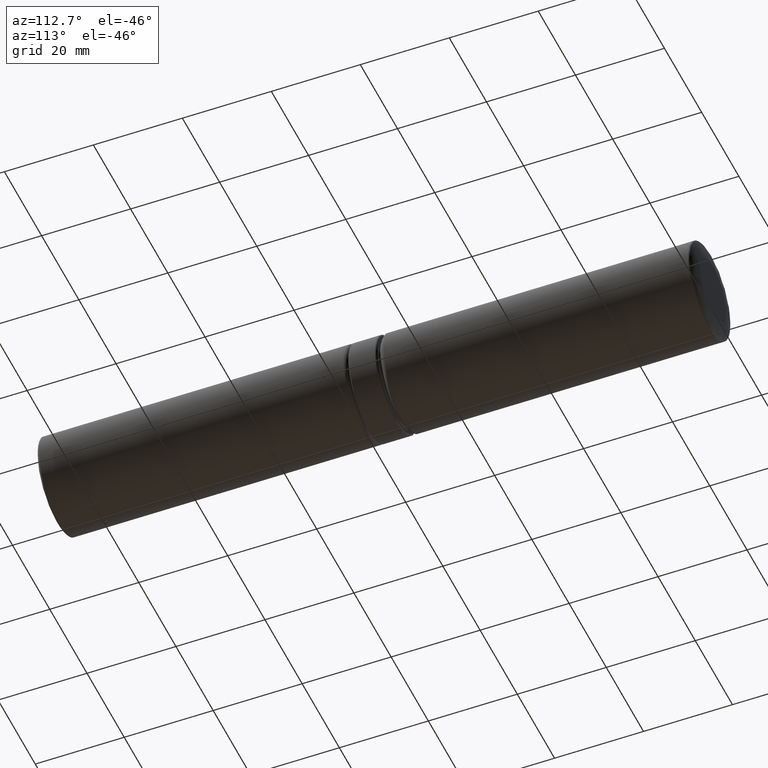
[diagram: clean part render]
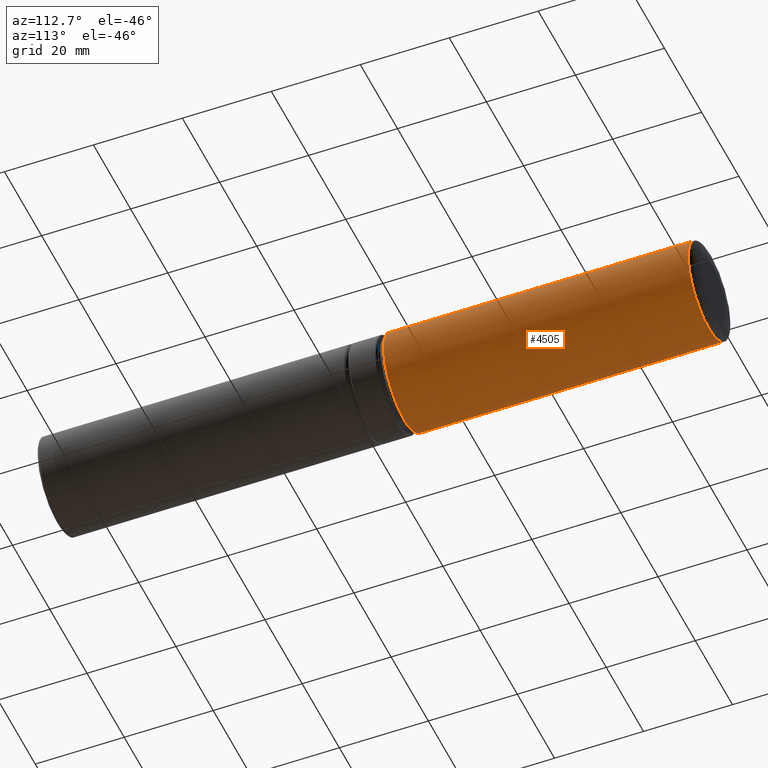
[diagram: same view with one face highlighted and labeled with its STEP entity id]
A machine part, auxiliary view. The second image highlights one B-rep face of the part: STEP entity #4505.
In plain terms, the highlighted cylindrical surface (bore or boss wall) has radius 11 mm, axis along (0, -1, 0).
Its self-contained STEP definition (entity closure, byte-faithful):
#54 = ORIENTED_EDGE ( 'NONE', *, *, #2848, .T. ) ;
#464 = CARTESIAN_POINT ( 'NONE',  ( -7.293008042015047820, 32.06640379061051505, 8.234806233245794971 ) ) ;
#531 = CARTESIAN_POINT ( 'NONE',  ( 2.879226727952087561, 34.24999999999999289, 10.71369944335146052 ) ) ;
#572 = CARTESIAN_POINT ( 'NONE',  ( 11.00000000000000355, 34.25000000000000711, 1.439896632895315998 ) ) ;
#675 = CARTESIAN_POINT ( 'NONE',  ( -8.796335266379980311, 34.25000000000000711, -6.760013919724062958 ) ) ;
#875 = CARTESIAN_POINT ( 'NONE',  ( 7.293008042015048709, -32.06640379061051505, 8.234806233245793194 ) ) ;
#1115 = EDGE_CURVE ( 'NONE', #10632, #10632, #5344, .T. ) ;
#1316 = VERTEX_POINT ( 'NONE', #10319 ) ;
#1421 = CARTESIAN_POINT ( 'NONE',  ( -10.71369944335147295, 34.25000000000001421, -2.879226727952075571 ) ) ;
#1490 = CARTESIAN_POINT ( 'NONE',  ( 8.796335266379974982, 34.25000000000000711, 6.760013919724064735 ) ) ;
#1527 = CARTESIAN_POINT ( 'NONE',  ( -2.879226727952078679, 34.25000000000000000, -10.71369944335146762 ) ) ;
#1778 = EDGE_CURVE ( 'NONE', #5676, #3161, #5598, .T. ) ;
#1843 = CARTESIAN_POINT ( 'NONE',  ( -7.293008042015047820, 35.25000000000000000, 8.234806233245794971 ) ) ;
#1874 = DIRECTION ( 'NONE',  ( 0.000000000000000000, -1.000000000000000000, 0.000000000000000000 ) ) ;
#1913 = CYLINDRICAL_SURFACE ( 'NONE', #6117, 10.99999999999999822 ) ;
#2215 = CARTESIAN_POINT ( 'NONE',  ( 1.084202172485504434E-15, 34.25000000000000000, 10.99999999999999822 ) ) ;
#2253 = CARTESIAN_POINT ( 'NONE',  ( -6.760013919724064735, 34.25000000000000000, -8.796335266379980311 ) ) ;
#2292 = CARTESIAN_POINT ( 'NONE',  ( -6.760013919724062070, 34.25000000000000000, 8.796335266379980311 ) ) ;
#2323 = CARTESIAN_POINT ( 'NONE',  ( 8.796335266379973206, 34.25000000000000000, -6.760013919724070952 ) ) ;
#2634 = ORIENTED_EDGE ( 'NONE', *, *, #7633, .T. ) ;
#2672 = AXIS2_PLACEMENT_3D ( 'NONE', #3234, #9132, #9171 ) ;
#2684 = CARTESIAN_POINT ( 'NONE',  ( 0.000000000000000000, -34.24999999999999289, 0.000000000000000000 ) ) ;
#2848 = EDGE_CURVE ( 'NONE', #9165, #9165, #10419, .T. ) ;
#3064 = ORIENTED_EDGE ( 'NONE', *, *, #1778, .T. ) ;
#3070 = CARTESIAN_POINT ( 'NONE',  ( 5.539808784079884418, 34.25000000000000000, -9.611650271896836628 ) ) ;
#3104 = CARTESIAN_POINT ( 'NONE',  ( 6.760013919724058518, 34.25000000000000711, 8.796335266379983864 ) ) ;
#3135 = CARTESIAN_POINT ( 'NONE',  ( -1.439896632895325101, 34.24999999999999289, -11.00000000000000178 ) ) ;
#3161 = VERTEX_POINT ( 'NONE', #6582 ) ;
#3204 = CARTESIAN_POINT ( 'NONE',  ( -1.439896632895319772, 34.24999999999999289, 11.00000000000000000 ) ) ;
#3234 = CARTESIAN_POINT ( 'NONE',  ( 0.000000000000000000, -32.06640379061051505, 0.000000000000000000 ) ) ;
#3792 = EDGE_LOOP ( 'NONE', ( #54 ) ) ;
#3854 = CARTESIAN_POINT ( 'NONE',  ( -10.99999999999999467, 34.24999999999999289, 1.439896632895326656 ) ) ;
#3934 = CARTESIAN_POINT ( 'NONE',  ( -9.611650271896838404, 34.25000000000000000, -5.539808784079884418 ) ) ;
#3964 = CARTESIAN_POINT ( 'NONE',  ( 6.760013919724051412, 34.24999999999999289, -8.796335266379987416 ) ) ;
#4126 = FACE_OUTER_BOUND ( 'NONE', #3792, .T. ) ;
#4219 = CARTESIAN_POINT ( 'NONE',  ( 0.000000000000000000, 32.06640379061051505, 0.000000000000000000 ) ) ;
#4505 = ADVANCED_FACE ( 'NONE', ( #4126, #6265, #6662 ), #1913, .T. ) ;
#4595 = CARTESIAN_POINT ( 'NONE',  ( 0.000000000000000000, -34.24999999999999289, 10.99999999999999822 ) ) ;
#4792 = CARTESIAN_POINT ( 'NONE',  ( -10.71369944335147295, 34.25000000000000000, 2.879226727952078235 ) ) ;
#4930 = AXIS2_PLACEMENT_3D ( 'NONE', #4219, #10347, #8392 ) ;
#4977 = ORIENTED_EDGE ( 'NONE', *, *, #9619, .T. ) ;
#5344 = B_SPLINE_CURVE_WITH_KNOTS ( 'NONE', 3,
 ( #2215, #3204, #5595, #9882, #2292, #10696, #8297, #4792, #3854, #7340, #1421, #3934, #675, #2253, #5711, #1527, #3135, #7413, #6536, #3070, #3964, #2323, #6567, #9803, #7449, #572, #9921, #8190, #1490, #3104, #5559, #531, #8264, #6501 ),
 .UNSPECIFIED., .T., .F.,
 ( 4, 2, 2, 2, 2, 2, 2, 2, 2, 2, 2, 2, 2, 2, 2, 2, 4 ),
 ( 0.000000000000000000, 0.06250000000000001388, 0.1250000000000000000, 0.1875000000000000000, 0.2500000000000000000, 0.3124999999999999445, 0.3749999999999999445, 0.4375000000000000000, 0.5000000000000000000, 0.5625000000000000000, 0.6250000000000000000, 0.6875000000000000000, 0.7500000000000000000, 0.8125000000000001110, 0.8750000000000001110, 0.9375000000000001110, 1.000000000000000000 ),
 .UNSPECIFIED. ) ;
#5461 = CARTESIAN_POINT ( 'NONE',  ( 1.347111479062088207E-15, 34.25000000000000000, 10.99999999999999822 ) ) ;
#5559 = CARTESIAN_POINT ( 'NONE',  ( 5.539808784079905735, 34.24999999999999289, 9.611650271896831299 ) ) ;
#5595 = CARTESIAN_POINT ( 'NONE',  ( -2.879226727952073794, 34.25000000000000711, 10.71369944335146940 ) ) ;
#5598 = CIRCLE ( 'NONE', #4930, 10.99999999999999822 ) ;
#5676 = VERTEX_POINT ( 'NONE', #464 ) ;
#5711 = CARTESIAN_POINT ( 'NONE',  ( -5.539808784079891524, 34.25000000000000000, -9.611650271896838404 ) ) ;
#6117 = AXIS2_PLACEMENT_3D ( 'NONE', #10881, #10774, #9135 ) ;
#6265 = FACE_OUTER_BOUND ( 'NONE', #10237, .T. ) ;
#6434 = LINE ( 'NONE', #6549, #10295 ) ;
#6501 = CARTESIAN_POINT ( 'NONE',  ( 1.084202172485504434E-15, 34.25000000000000000, 10.99999999999999822 ) ) ;
#6536 = CARTESIAN_POINT ( 'NONE',  ( 2.879226727952075571, 34.24999999999999289, -10.71369944335147117 ) ) ;
#6549 = CARTESIAN_POINT ( 'NONE',  ( 7.293008042015048709, 35.25000000000000000, 8.234806233245793194 ) ) ;
#6567 = CARTESIAN_POINT ( 'NONE',  ( 9.611650271896836628, 34.24999999999999289, -5.539808784079889747 ) ) ;
#6582 = CARTESIAN_POINT ( 'NONE',  ( 7.293008042015048709, 32.06640379061051505, 8.234806233245793194 ) ) ;
#6662 = FACE_BOUND ( 'NONE', #7313, .T. ) ;
#7313 = EDGE_LOOP ( 'NONE', ( #2634, #4977, #7665, #3064 ) ) ;
#7324 = DIRECTION ( 'NONE',  ( 0.000000000000000000, -1.000000000000000000, 0.000000000000000000 ) ) ;
#7340 = CARTESIAN_POINT ( 'NONE',  ( -10.99999999999999822, 34.25000000000000000, -1.439896632895321771 ) ) ;
#7413 = CARTESIAN_POINT ( 'NONE',  ( 1.439896632895319772, 34.25000000000000000, -10.99999999999999822 ) ) ;
#7449 = CARTESIAN_POINT ( 'NONE',  ( 11.00000000000000000, 34.25000000000001421, -1.439896632895319106 ) ) ;
#7633 = EDGE_CURVE ( 'NONE', #3161, #8478, #6434, .T. ) ;
#7635 = AXIS2_PLACEMENT_3D ( 'NONE', #2684, #8549, #9466 ) ;
#7665 = ORIENTED_EDGE ( 'NONE', *, *, #7675, .F. ) ;
#7675 = EDGE_CURVE ( 'NONE', #5676, #1316, #8441, .T. ) ;
#7789 = VECTOR ( 'NONE', #1874, 1000.000000000000000 ) ;
#8190 = CARTESIAN_POINT ( 'NONE',  ( 9.611650271896833075, 34.25000000000000000, 5.539808784079891524 ) ) ;
#8264 = CARTESIAN_POINT ( 'NONE',  ( 1.439896632895319328, 34.25000000000000000, 10.99999999999999645 ) ) ;
#8297 = CARTESIAN_POINT ( 'NONE',  ( -9.611650271896838404, 34.25000000000000711, 5.539808784079889747 ) ) ;
#8392 = DIRECTION ( 'NONE',  ( 0.000000000000000000, 0.000000000000000000, 1.000000000000000000 ) ) ;
#8441 = LINE ( 'NONE', #1843, #7789 ) ;
#8478 = VERTEX_POINT ( 'NONE', #875 ) ;
#8549 = DIRECTION ( 'NONE',  ( 0.000000000000000000, 1.000000000000000000, 0.000000000000000000 ) ) ;
#9132 = DIRECTION ( 'NONE',  ( -0.000000000000000000, -1.000000000000000000, 4.921201350288814776E-17 ) ) ;
#9135 = DIRECTION ( 'NONE',  ( 0.000000000000000000, 0.000000000000000000, -1.000000000000000000 ) ) ;
#9165 = VERTEX_POINT ( 'NONE', #4595 ) ;
#9171 = DIRECTION ( 'NONE',  ( 0.000000000000000000, 0.000000000000000000, 1.000000000000000000 ) ) ;
#9412 = CIRCLE ( 'NONE', #2672, 10.99999999999999822 ) ;
#9466 = DIRECTION ( 'NONE',  ( 0.000000000000000000, 0.000000000000000000, 1.000000000000000000 ) ) ;
#9619 = EDGE_CURVE ( 'NONE', #8478, #1316, #9412, .T. ) ;
#9803 = CARTESIAN_POINT ( 'NONE',  ( 10.71369944335146762, 34.24999999999998579, -2.879226727952078235 ) ) ;
#9882 = CARTESIAN_POINT ( 'NONE',  ( -5.539808784079884418, 34.24999999999999289, 9.611650271896836628 ) ) ;
#9921 = CARTESIAN_POINT ( 'NONE',  ( 10.71369944335147295, 34.25000000000001421, 2.879226727952081344 ) ) ;
#9931 = ORIENTED_EDGE ( 'NONE', *, *, #1115, .T. ) ;
#10237 = EDGE_LOOP ( 'NONE', ( #9931 ) ) ;
#10295 = VECTOR ( 'NONE', #7324, 1000.000000000000000 ) ;
#10319 = CARTESIAN_POINT ( 'NONE',  ( -7.293008042015047820, -32.06640379061051505, 8.234806233245794971 ) ) ;
#10347 = DIRECTION ( 'NONE',  ( 0.000000000000000000, 1.000000000000000000, 4.921201350288814776E-17 ) ) ;
#10419 = CIRCLE ( 'NONE', #7635, 10.99999999999999822 ) ;
#10632 = VERTEX_POINT ( 'NONE', #5461 ) ;
#10696 = CARTESIAN_POINT ( 'NONE',  ( -8.796335266379978535, 34.25000000000000711, 6.760013919724066511 ) ) ;
#10774 = DIRECTION ( 'NONE',  ( 0.000000000000000000, -1.000000000000000000, 0.000000000000000000 ) ) ;
#10881 = CARTESIAN_POINT ( 'NONE',  ( 0.000000000000000000, 35.25000000000000000, 0.000000000000000000 ) ) ;